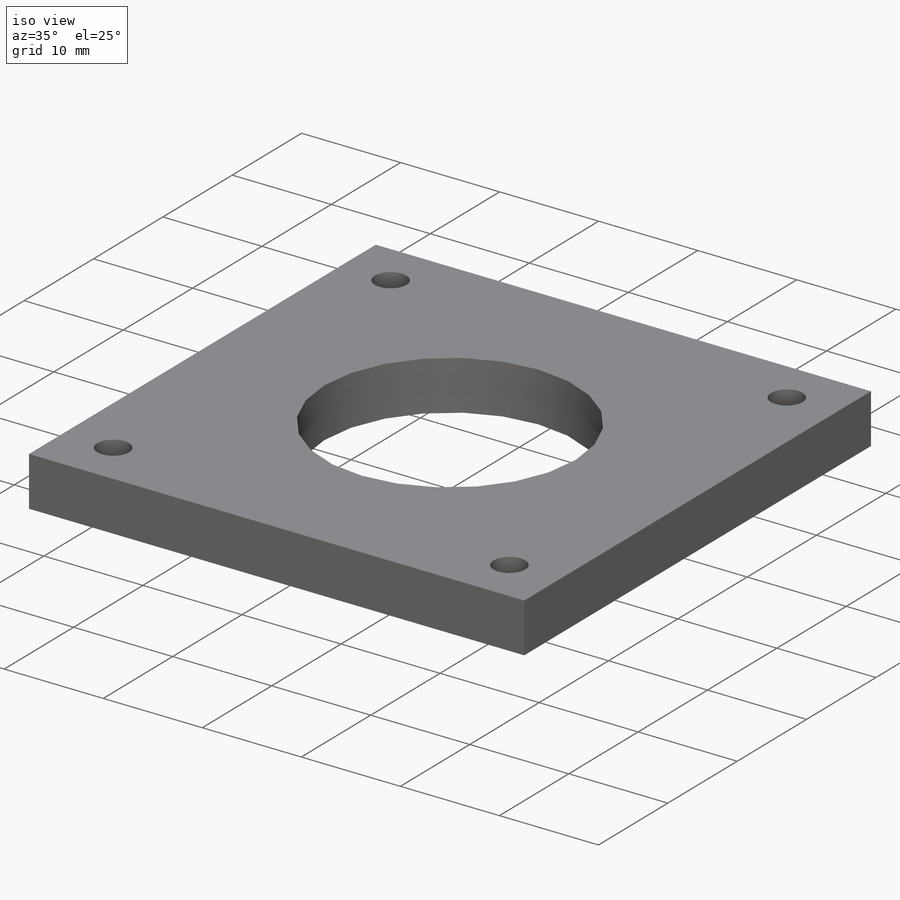
[diagram: iso view]
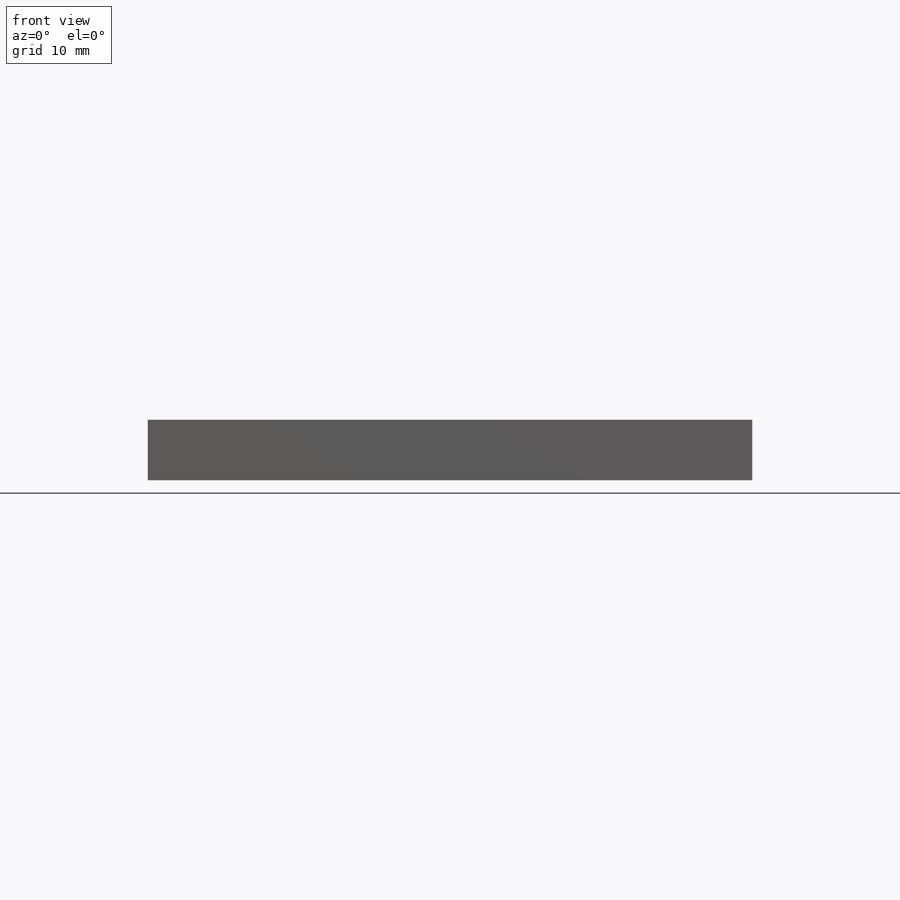
[diagram: front view]
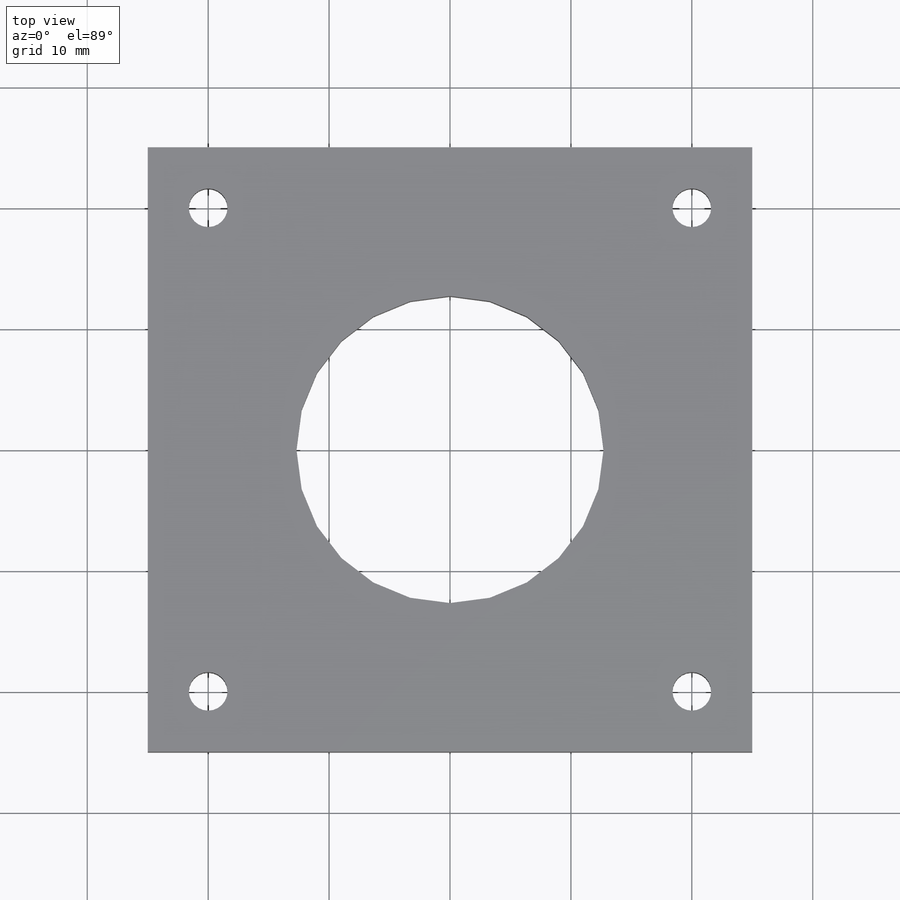
[diagram: top view]
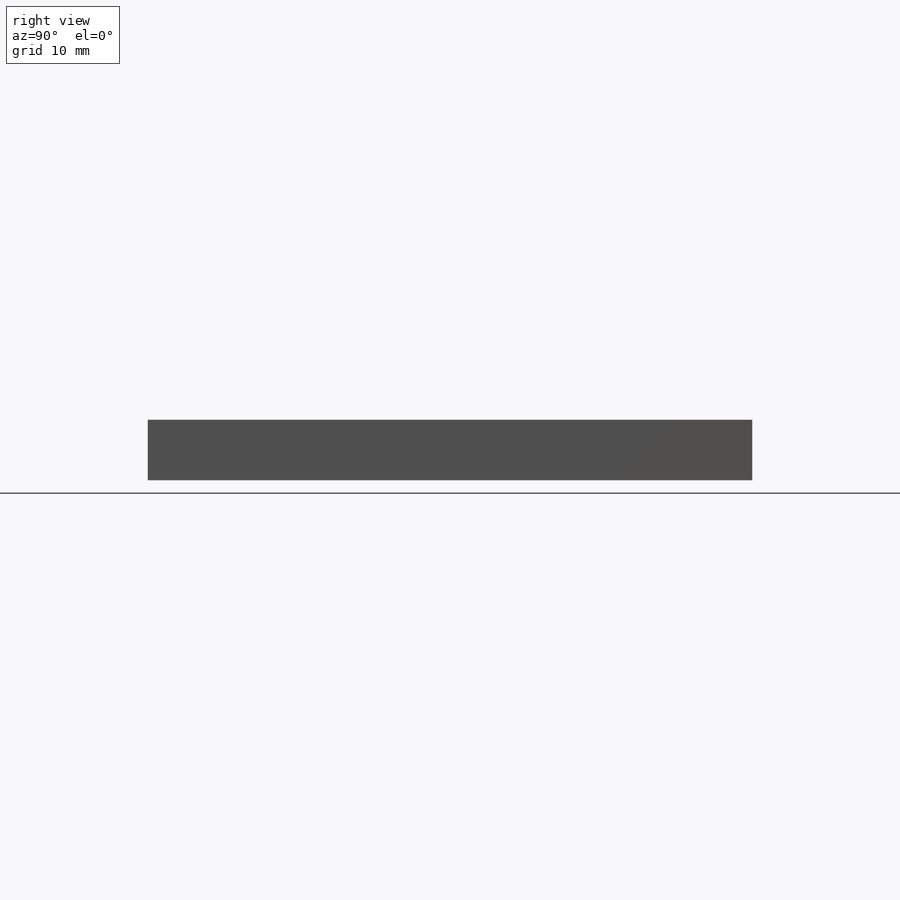
[diagram: right view]
SOLIDWORKS PART (.sldprt)
format: sldprt  version: not decoded by parser v0  size: 193,024 bytes
history: native  units: mm
features: sketch x6, hole x2, material x1, extrude x1, pattern_linear x1 (+14 scaffold rows collapsed)
feature tree (25):
  scaffold x14  (default folders/planes/origin — collapsed)
  material  "Material <not specified>"
  sketch  "Sketch1"  dims[D1=50.0mm D2=50.0mm]
  extrude  "Extrude1"  Depth=5mm
  hole  "M3 Clearance Hole1"  Diameter=3.2mm Depth=6mm
  sketch  "3DSketch1"  dims[D1=5.0mm D2=5.0mm]
  sketch  "Sketch2"  dims[hole-wizard template sketch: 47 standard entries collapsed; hole parameters kept: c15.Hole Depth=6.0mm c15.D3=~14.816244mm c15.Drill Angle=118.0deg]
  sketch  "Sketch3"
  pattern_linear  "LPattern1"  Count1=2 Count2=2 Spacing1=40mm Spacing2=40mm
  hole  "1 (1) Diameter Hole1"  Diameter=25.4mm Depth=6mm
  sketch  "3DSketch3"  dims[D1=25.0mm D2=25.0mm]
  sketch  "Sketch5"  dims[hole-wizard template sketch: 47 standard entries collapsed; hole parameters kept: c15.Hole Depth=6.0mm c15.D3=~14.816244mm c15.Drill Angle=118.0deg]
decode coverage: 9 of 10 modeling features carry decoded parameters
note: ~ marks probable driven/reference dimensions
note: suppression state not decoded; provenance and decode notes live in map.json
